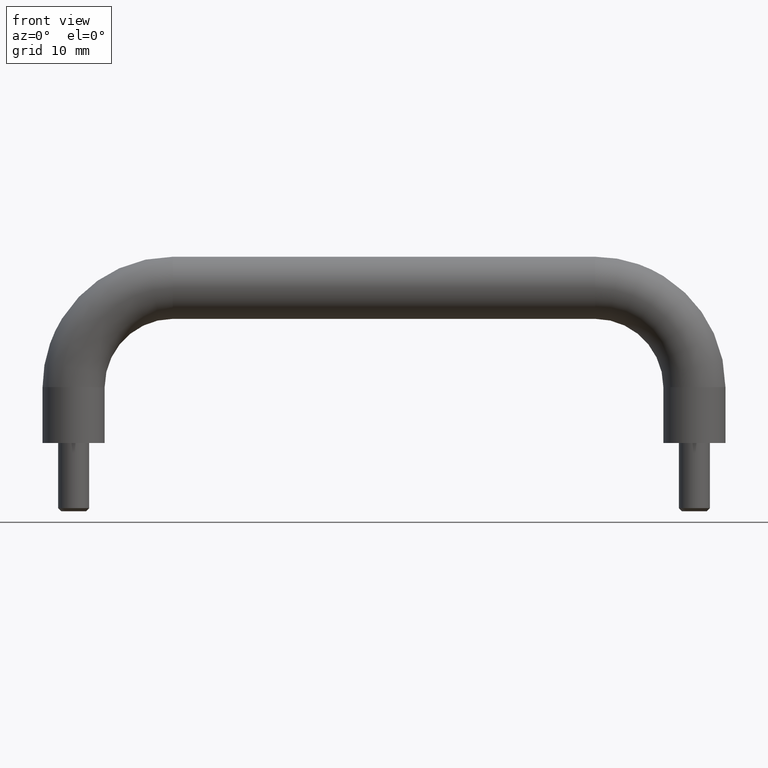
[diagram: clean part render]
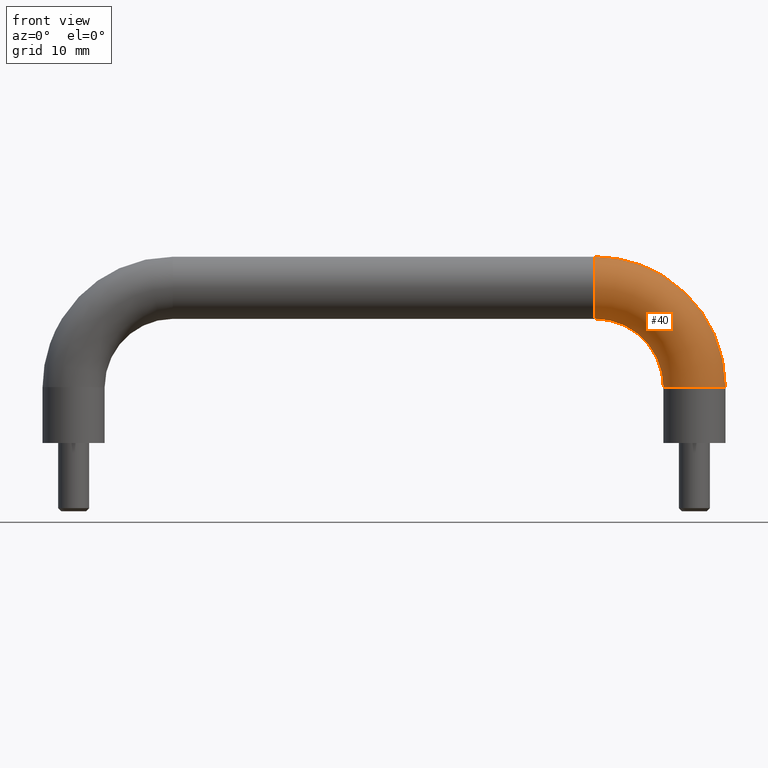
[diagram: same view with one face highlighted and labeled with its STEP entity id]
A machine part, front view. The second image highlights one B-rep face of the part: STEP entity #40.
In plain terms, the highlighted face is a freeform B-spline surface patch.
Its self-contained STEP definition (entity closure, byte-faithful):
#40=ADVANCED_FACE('',(#65),#64,.T.);
#64=( BOUNDED_SURFACE() B_SPLINE_SURFACE( 3,3,((#306,#307,#308,#309,#310,#311,#312),(#313,#314,#315,#316,#317,#318,#319),(#320,#321,#322,#323,#324,#325,#326),(#327,#328,#329,#330,#331,#332,#333),(#334,#335,#336,#337,#338,#339,#340),(#341,#342,#343,#344,#345,#346,#347),(#348,#349,#350,#351,#352,#353,#354)), .UNSPECIFIED.,.F.,.F.,.F.) B_SPLINE_SURFACE_WITH_KNOTS((4,1,1,1,4),(4,1,1,1,4),(0.00000000000E+00,2.50000000000E-01,5.00000000000E-01,7.50000000000E-01,1.00000000000E+00),(0.00000000000E+00,2.49559115838E-01,5.00000000000E-01,7.50440884162E-01,1.00000000000E+00), .UNSPECIFIED. ) GEOMETRIC_REPRESENTATION_ITEM() RATIONAL_B_SPLINE_SURFACE(((1.00000000000E+00,1.00000000000E+00,1.00000000000E+00,1.00000000000E+00,1.00000000000E+00,1.00000000000E+00,1.00000000000E+00),(1.00000000000E+00,1.00000000000E+00,1.00000000000E+00,1.00000000000E+00,1.00000000000E+00,1.00000000000E+00,1.00000000000E+00),(1.00000000000E+00,1.00000000000E+00,1.00000000000E+00,1.00000000000E+00,1.00000000000E+00,1.00000000000E+00,1.00000000000E+00),(1.00000000000E+00,1.00000000000E+00,1.00000000000E+00,1.00000000000E+00,1.00000000000E+00,1.00000000000E+00,1.00000000000E+00),(1.00000000000E+00,1.00000000000E+00,1.00000000000E+00,1.00000000000E+00,1.00000000000E+00,1.00000000000E+00,1.00000000000E+00),(1.00000000000E+00,1.00000000000E+00,1.00000000000E+00,1.00000000000E+00,1.00000000000E+00,1.00000000000E+00,1.00000000000E+00),(1.00000000000E+00,1.00000000000E+00,1.00000000000E+00,1.00000000000E+00,1.00000000000E+00,1.00000000000E+00,1.00000000000E+00))) REPRESENTATION_ITEM('') SURFACE() );
#65=FACE_OUTER_BOUND('',#355,.T.);
#306=CARTESIAN_POINT('',(4.49999999999E+01,-9.33703686742E-11,-1.10000000000E+01));
#307=CARTESIAN_POINT('',(4.49999999999E+01,-9.33703686742E-11,-9.56264255118E+00));
#308=CARTESIAN_POINT('',(4.44283487205E+01,-9.33703686742E-11,-6.68367431598E+00));
#309=CARTESIAN_POINT('',(4.19814511429E+01,-9.33703686742E-11,-3.01854885702E+00));
#310=CARTESIAN_POINT('',(3.83163256839E+01,-9.33703686742E-11,-5.71651279386E-01));
#311=CARTESIAN_POINT('',(3.54373574487E+01,-9.33703686742E-11,-1.98951966013E-13));
#312=CARTESIAN_POINT('',(3.39999999999E+01,-9.33703686742E-11,-1.98951966013E-13));
#313=CARTESIAN_POINT('',(4.49934772928E+01,-1.30817095284E+00,-1.10000000000E+01));
#314=CARTESIAN_POINT('',(4.49934772928E+01,-1.30817095284E+00,-9.54137345225E+00));
#315=CARTESIAN_POINT('',(4.44213737429E+01,-1.30817095284E+00,-6.69654232543E+00));
#316=CARTESIAN_POINT('',(4.19794981955E+01,-1.30817095284E+00,-3.02050180442E+00));
#317=CARTESIAN_POINT('',(3.83034576745E+01,-1.30817095284E+00,-5.78626256969E-01));
#318=CARTESIAN_POINT('',(3.54586265477E+01,-1.30817095284E+00,-6.52270714368E-03));
#319=CARTESIAN_POINT('',(3.39999999999E+01,-1.30817095284E+00,-6.52270714369E-03));
#320=CARTESIAN_POINT('',(4.60811514511E+01,-3.91898719537E+00,-1.10000000000E+01));
#321=CARTESIAN_POINT('',(4.60811514511E+01,-3.91898719537E+00,-9.37106881674E+00));
#322=CARTESIAN_POINT('',(4.54515153949E+01,-3.91898719537E+00,-6.28287793313E+00));
#323=CARTESIAN_POINT('',(4.27722409624E+01,-3.91898719537E+00,-2.22775903753E+00));
#324=CARTESIAN_POINT('',(3.87171220668E+01,-3.91898719537E+00,4.51515395000E-01));
#325=CARTESIAN_POINT('',(3.56289311832E+01,-3.91898719537E+00,1.08115145117E+00));
#326=CARTESIAN_POINT('',(3.39999999999E+01,-3.91898719537E+00,1.08115145117E+00));
#327=CARTESIAN_POINT('',(4.99999999999E+01,-5.54551769882E+00,-1.10000000000E+01));
#328=CARTESIAN_POINT('',(4.99999999999E+01,-5.54551769882E+00,-8.90929825627E+00));
#329=CARTESIAN_POINT('',(4.91685072299E+01,-5.54551769882E+00,-4.72170809598E+00));
#330=CARTESIAN_POINT('',(4.56093834806E+01,-5.54551769882E+00,6.09383480694E-01));
#331=CARTESIAN_POINT('',(4.02782919039E+01,-5.54551769882E+00,4.16850722998E+00));
#332=CARTESIAN_POINT('',(3.60907017436E+01,-5.54551769882E+00,5.00000000000E+00));
#333=CARTESIAN_POINT('',(3.39999999999E+01,-5.54551769882E+00,5.00000000000E+00));
#334=CARTESIAN_POINT('',(5.39188485487E+01,-3.91898719537E+00,-1.10000000000E+01));
#335=CARTESIAN_POINT('',(5.39188485487E+01,-3.91898719537E+00,-8.44752769579E+00));
#336=CARTESIAN_POINT('',(5.28854990649E+01,-3.91898719537E+00,-3.16053825883E+00));
#337=CARTESIAN_POINT('',(4.84465259988E+01,-3.91898719537E+00,3.44652599892E+00));
#338=CARTESIAN_POINT('',(4.18394617411E+01,-3.91898719537E+00,7.88549906497E+00));
#339=CARTESIAN_POINT('',(3.65524723041E+01,-3.91898719537E+00,8.91884854883E+00));
#340=CARTESIAN_POINT('',(3.39999999999E+01,-3.91898719537E+00,8.91884854883E+00));
#341=CARTESIAN_POINT('',(5.50065227070E+01,-1.30817095284E+00,-1.10000000000E+01));
#342=CARTESIAN_POINT('',(5.50065227070E+01,-1.30817095284E+00,-8.27722306029E+00));
#343=CARTESIAN_POINT('',(5.39156407168E+01,-1.30817095284E+00,-2.74687386652E+00));
#344=CARTESIAN_POINT('',(4.92392687657E+01,-1.30817095284E+00,4.23926876581E+00));
#345=CARTESIAN_POINT('',(4.22531261334E+01,-1.30817095284E+00,8.91564071694E+00));
#346=CARTESIAN_POINT('',(3.67227769396E+01,-1.30817095284E+00,1.00065227071E+01));
#347=CARTESIAN_POINT('',(3.39999999999E+01,-1.30817095284E+00,1.00065227071E+01));
#348=CARTESIAN_POINT('',(5.49999999999E+01,-9.33697563710E-11,-1.10000000000E+01));
#349=CARTESIAN_POINT('',(5.49999999999E+01,-9.33697563710E-11,-8.25595396135E+00));
#350=CARTESIAN_POINT('',(5.39086657393E+01,-9.33697563710E-11,-2.75974187597E+00));
#351=CARTESIAN_POINT('',(4.92373158183E+01,-9.33697563710E-11,4.23731581841E+00));
#352=CARTESIAN_POINT('',(4.22402581239E+01,-9.33697563710E-11,8.90866573935E+00));
#353=CARTESIAN_POINT('',(3.67440460385E+01,-9.33697563710E-11,1.00000000000E+01));
#354=CARTESIAN_POINT('',(3.39999999999E+01,-9.33697563710E-11,1.00000000000E+01));
#355=EDGE_LOOP('',(#632,#633,#634,#635));
#632=ORIENTED_EDGE('',*,*,#724,.T.);
#633=ORIENTED_EDGE('',*,*,#725,.F.);
#634=ORIENTED_EDGE('',*,*,#726,.T.);
#635=ORIENTED_EDGE('',*,*,#727,.T.);
#724=EDGE_CURVE('',#770,#771,#772,.T.);
#725=EDGE_CURVE('',#778,#771,#779,.T.);
#726=EDGE_CURVE('',#778,#785,#786,.T.);
#727=EDGE_CURVE('',#785,#770,#792,.T.);
#770=VERTEX_POINT('',#1072);
#771=VERTEX_POINT('',#1073);
#772=CIRCLE('',#1077,5.00000000000E+00);
#778=VERTEX_POINT('',#1078);
#779=CIRCLE('',#1082,1.10000000000E+01);
#785=VERTEX_POINT('',#1083);
#786=CIRCLE('',#1087,5.00000000000E+00);
#792=(BOUNDED_CURVE() B_SPLINE_CURVE(3,(#1088,#1089,#1090,#1091,#1092,#1093,#1094,#1095,#1096),.UNSPECIFIED.,.F.,.F.) B_SPLINE_CURVE_WITH_KNOTS((4,1,1,1,1,1,4),(1.57079632680E+00,1.84807220328E+00,2.07912984810E+00,2.35619449020E+00,2.63325913230E+00,2.86431677711E+00,3.14159265360E+00),.UNSPECIFIED.) CURVE() GEOMETRIC_REPRESENTATION_ITEM() RATIONAL_B_SPLINE_CURVE((1.00000000000E+00,1.00000000000E+00,1.00000000000E+00,1.00000000000E+00,1.00000000000E+00,1.00000000000E+00,1.00000000000E+00,1.00000000000E+00,1.00000000000E+00)) REPRESENTATION_ITEM('') );
#1072=CARTESIAN_POINT('',(3.39999999999E+01,-9.33694603115E-11,1.00000000000E+01));
#1073=CARTESIAN_POINT('',(3.39999999999E+01,-9.33697563710E-11,-1.98951966013E-13));
#1074=CARTESIAN_POINT('',(3.39999999999E+01,-9.33697563710E-11,5.00000000000E+00));
#1075=DIRECTION('',(1.00000000000E+00,0.00000000000E+00,-0.00000000000E+00));
#1076=DIRECTION('',(-0.00000000000E+00,-5.92118999992E-17,-1.00000000000E+00));
#1077=AXIS2_PLACEMENT_3D('',#1074,#1075,#1076);
#1078=CARTESIAN_POINT('',(4.49999999999E+01,-9.33650194194E-11,-1.10000000000E+01));
#1079=CARTESIAN_POINT('',(3.39999999999E+01,-9.33703686742E-11,-1.10000000000E+01));
#1080=DIRECTION('',(2.34994492203E-27,-1.00000000000E+00,6.52533137482E-28));
#1081=DIRECTION('',(-1.00000000000E+00,-2.34994492203E-27,2.55795384874E-13));
#1082=AXIS2_PLACEMENT_3D('',#1079,#1080,#1081);
#1083=CARTESIAN_POINT('',(5.49999999999E+01,-9.33654195623E-11,-1.10000000000E+01));
#1084=CARTESIAN_POINT('',(4.99999999999E+01,-9.33654195623E-11,-1.10000000000E+01));
#1085=DIRECTION('',(0.00000000000E+00,0.00000000000E+00,1.00000000000E+00));
#1086=DIRECTION('',(1.00000000000E+00,-8.00285799997E-17,-0.00000000000E+00));
#1087=AXIS2_PLACEMENT_3D('',#1084,#1085,#1086);
#1088=CARTESIAN_POINT('',(5.49999999999E+01,-9.33697563710E-11,-1.10000000000E+01));
#1089=CARTESIAN_POINT('',(5.50006883910E+01,-9.33697563710E-11,-9.06349433158E+00));
#1090=CARTESIAN_POINT('',(5.45046674129E+01,-9.33697563710E-11,-5.50782353845E+00));
#1091=CARTESIAN_POINT('',(5.23885236565E+01,-9.33697563710E-11,-3.93936789027E-01));
#1092=CARTESIAN_POINT('',(4.90411501762E+01,-9.33697563710E-11,4.04115017650E+00));
#1093=CARTESIAN_POINT('',(4.46060632107E+01,-9.33697563710E-11,7.38852365674E+00));
#1094=CARTESIAN_POINT('',(3.94921764612E+01,-9.33697563710E-11,9.50466741306E+00));
#1095=CARTESIAN_POINT('',(3.59365056681E+01,-9.33697563710E-11,1.00006883911E+01));
#1096=CARTESIAN_POINT('',(3.39999999998E+01,-9.33697563710E-11,1.00000000000E+01));